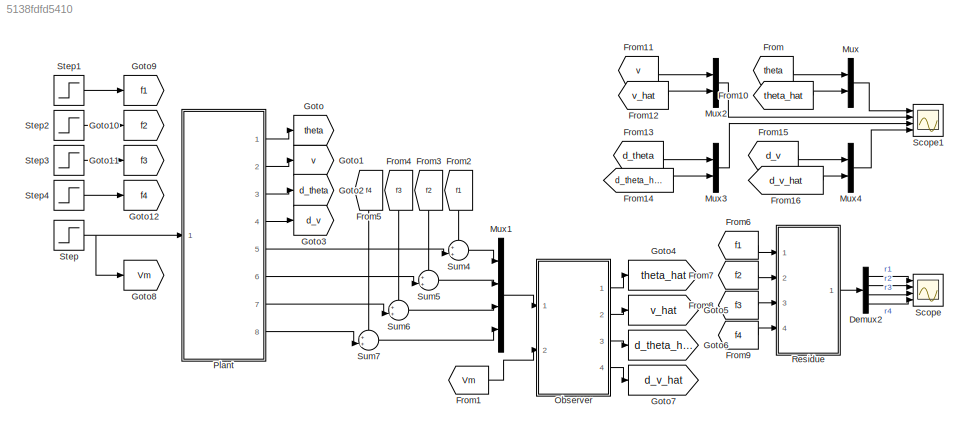
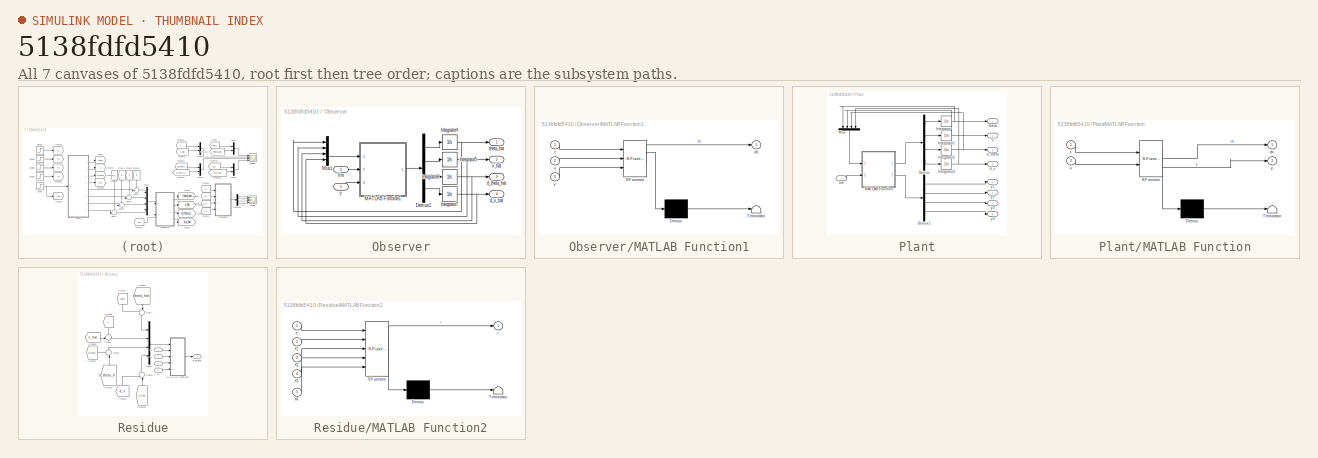
[diagram: thumbnail index - all 7 canvases of the model, root first then tree order]
MODEL slx_5138fdfd5410
KIND model
CONFIG AbsTol = auto
CONFIG EnableMultiTasking = on
CONFIG FixedStep = auto
CONFIG MaxStep = 2e-3
CONFIG MinStep = 1e-3
CONFIG RelTol = 1e-4
CONFIG SampleTimeConstraint = Unconstrained
CONFIG SolverName = ode45
CONFIG StartTime = 0.0
CONFIG StopTime = 5
BLOCK [Demux] Demux2
  Ports = [1, 4]
BLOCK [From] From
  GotoTag = theta
  TagVisibility = global
BLOCK [From] From1
  GotoTag = Vm
  TagVisibility = global
BLOCK [From] From10
  GotoTag = theta_hat
  TagVisibility = global
BLOCK [From] From11
  GotoTag = v
  TagVisibility = global
BLOCK [From] From12
  GotoTag = v_hat
  TagVisibility = global
BLOCK [From] From13
  GotoTag = d_theta
  TagVisibility = global
BLOCK [From] From14
  GotoTag = d_theta_hat
  TagVisibility = global
BLOCK [From] From15
  GotoTag = d_v
  TagVisibility = global
BLOCK [From] From16
  GotoTag = d_v_hat
  TagVisibility = global
BLOCK [From] From2
  GotoTag = f1
  NameLocation = left
  TagVisibility = global
BLOCK [From] From3
  GotoTag = f2
  NameLocation = left
  TagVisibility = global
BLOCK [From] From4
  GotoTag = f3
  NameLocation = left
  TagVisibility = global
BLOCK [From] From5
  GotoTag = f4
  NameLocation = left
  TagVisibility = global
BLOCK [From] From6
  GotoTag = f1
  TagVisibility = global
BLOCK [From] From7
  GotoTag = f2
  TagVisibility = global
BLOCK [From] From8
  GotoTag = f3
  TagVisibility = global
BLOCK [From] From9
  GotoTag = f4
  TagVisibility = global
BLOCK [Goto] Goto
  GotoTag = theta
  TagVisibility = global
BLOCK [Goto] Goto1
  GotoTag = v
  TagVisibility = global
BLOCK [Goto] Goto10
  GotoTag = f2
  TagVisibility = global
BLOCK [Goto] Goto11
  GotoTag = f3
  TagVisibility = global
BLOCK [Goto] Goto12
  GotoTag = f4
  TagVisibility = global
BLOCK [Goto] Goto2
  GotoTag = d_theta
  TagVisibility = global
BLOCK [Goto] Goto3
  GotoTag = d_v
  TagVisibility = global
BLOCK [Goto] Goto4
  GotoTag = theta_hat
  TagVisibility = global
BLOCK [Goto] Goto5
  GotoTag = v_hat
  TagVisibility = global
BLOCK [Goto] Goto6
  GotoTag = d_theta_hat
  TagVisibility = global
BLOCK [Goto] Goto7
  GotoTag = d_v_hat
  TagVisibility = global
BLOCK [Goto] Goto8
  GotoTag = Vm
  NameLocation = top
  TagVisibility = global
BLOCK [Goto] Goto9
  GotoTag = f1
  TagVisibility = global
BLOCK [Mux] Mux
  DisplayOption = bar
  Inputs = 2
  Ports = [2, 1]
BLOCK [Mux] Mux1
  DisplayOption = bar
  Ports = [4, 1]
BLOCK [Mux] Mux2
  DisplayOption = bar
  Inputs = 2
  Ports = [2, 1]
BLOCK [Mux] Mux3
  DisplayOption = bar
  Inputs = 2
  Ports = [2, 1]
BLOCK [Mux] Mux4
  DisplayOption = bar
  Inputs = 2
  Ports = [2, 1]
BLOCK [SubSystem] Observer
  Ports = [2, 4]
  RequestExecContextInheritance = off
BLOCK [Demux] Observer/Demux1
  Ports = [1, 4]
BLOCK [Integrator] Observer/Integrator4
  Ports = [1, 1]
BLOCK [Integrator] Observer/Integrator5
  Ports = [1, 1]
BLOCK [Integrator] Observer/Integrator6
  Ports = [1, 1]
BLOCK [Integrator] Observer/Integrator7
  Ports = [1, 1]
BLOCK [SubSystem] Observer/MATLAB Function1
  ErrorFcn = Stateflow.Translate.translate
  PermitHierarchicalResolution = ExplicitOnly
  Ports = [3, 1]
  RequestExecContextInheritance = off
  SFBlockType = MATLAB Function
  TreatAsAtomicUnit = on
BLOCK [Demux] Observer/MATLAB Function1/ Demux 
  Outputs = 1
  Ports = [1, 1]
BLOCK [S-Function] Observer/MATLAB Function1/ SFunction 
  EnableBusSupport = on
  FunctionName = sf_sfun
  PortCounts = [3 2]
  Ports = [3, 2]
  SFcnIsStateOwnerBlock = off
  SFunctionDeploymentMode = off
  Tag = Stateflow S-Function 1
BLOCK [Terminator] Observer/MATLAB Function1/ Terminator 
BLOCK [Outport] Observer/MATLAB Function1/dz
BLOCK [Inport] Observer/MATLAB Function1/u
  Port = 2
BLOCK [Inport] Observer/MATLAB Function1/y
  Port = 3
BLOCK [Inport] Observer/MATLAB Function1/z
BLOCK [Mux] Observer/Mux1
  DisplayOption = bar
  Ports = [4, 1]
BLOCK [Inport] Observer/Vm
  NameLocation = top
  Port = 2
BLOCK [Outport] Observer/d_theta_hat
  Port = 3
BLOCK [Outport] Observer/d_v_hat
  Port = 4
BLOCK [Outport] Observer/theta_hat
BLOCK [Outport] Observer/v_hat
  Port = 2
BLOCK [Inport] Observer/y
BLOCK [SubSystem] Plant
  Ports = [1, 8]
  RequestExecContextInheritance = off
BLOCK [Demux] Plant/Demux
  Ports = [1, 4]
BLOCK [Demux] Plant/Demux1
  Ports = [1, 4]
BLOCK [Integrator] Plant/Integrator
  Ports = [1, 1]
BLOCK [Integrator] Plant/Integrator1
  Ports = [1, 1]
BLOCK [Integrator] Plant/Integrator2
  Ports = [1, 1]
BLOCK [Integrator] Plant/Integrator3
  Ports = [1, 1]
BLOCK [SubSystem] Plant/MATLAB Function
  ErrorFcn = Stateflow.Translate.translate
  PermitHierarchicalResolution = ExplicitOnly
  Ports = [2, 2]
  RequestExecContextInheritance = off
  SFBlockType = MATLAB Function
  TreatAsAtomicUnit = on
BLOCK [Demux] Plant/MATLAB Function/ Demux 
  Outputs = 1
  Ports = [1, 1]
BLOCK [S-Function] Plant/MATLAB Function/ SFunction 
  EnableBusSupport = on
  FunctionName = sf_sfun
  PortCounts = [2 3]
  Ports = [2, 3]
  SFcnIsStateOwnerBlock = off
  SFunctionDeploymentMode = off
  Tag = Stateflow S-Function 2
BLOCK [Terminator] Plant/MATLAB Function/ Terminator 
BLOCK [Outport] Plant/MATLAB Function/dx
BLOCK [Inport] Plant/MATLAB Function/u
  Port = 2
BLOCK [Inport] Plant/MATLAB Function/x
BLOCK [Outport] Plant/MATLAB Function/y
  Port = 2
BLOCK [Mux] Plant/Mux
  DisplayOption = bar
  NameLocation = left
  Ports = [4, 1]
BLOCK [Inport] Plant/Vm
BLOCK [Outport] Plant/d_theta
  Port = 3
BLOCK [Outport] Plant/d_v
  Port = 4
BLOCK [Outport] Plant/theta
BLOCK [Outport] Plant/v
  Port = 2
BLOCK [Outport] Plant/y1
  Port = 5
BLOCK [Outport] Plant/y2
  Port = 6
BLOCK [Outport] Plant/y3
  Port = 7
BLOCK [Outport] Plant/y4
  Port = 8
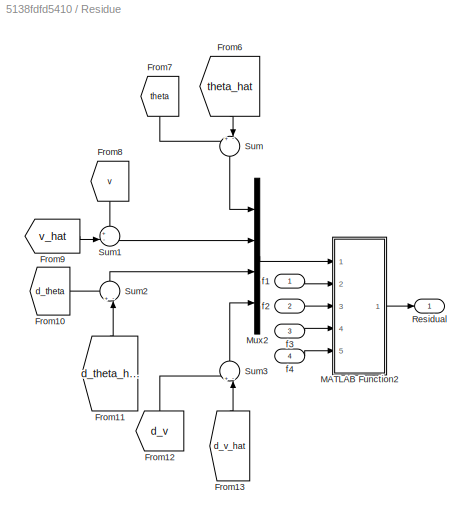
BLOCK [SubSystem] Residue
  Ports = [4, 1]
  RequestExecContextInheritance = off
BLOCK [From] Residue/From10
  GotoTag = d_theta
  TagVisibility = global
BLOCK [From] Residue/From11
  GotoTag = d_theta_hat
  NameLocation = right
  TagVisibility = global
BLOCK [From] Residue/From12
  GotoTag = d_v
  NameLocation = right
  TagVisibility = global
BLOCK [From] Residue/From13
  GotoTag = d_v_hat
  NameLocation = left
  TagVisibility = global
BLOCK [From] Residue/From6
  GotoTag = theta_hat
  NameLocation = left
  TagVisibility = global
BLOCK [From] Residue/From7
  GotoTag = theta
  NameLocation = left
  TagVisibility = global
BLOCK [From] Residue/From8
  GotoTag = v
  NameLocation = left
  TagVisibility = global
BLOCK [From] Residue/From9
  GotoTag = v_hat
  TagVisibility = global
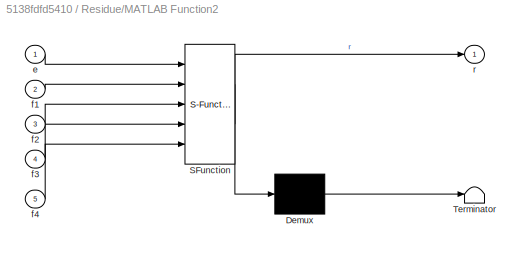
BLOCK [SubSystem] Residue/MATLAB Function2
  ErrorFcn = Stateflow.Translate.translate
  PermitHierarchicalResolution = ExplicitOnly
  Ports = [5, 1]
  RequestExecContextInheritance = off
  SFBlockType = MATLAB Function
  TreatAsAtomicUnit = on
BLOCK [Demux] Residue/MATLAB Function2/ Demux 
  Outputs = 1
  Ports = [1, 1]
BLOCK [S-Function] Residue/MATLAB Function2/ SFunction 
  EnableBusSupport = on
  FunctionName = sf_sfun
  PortCounts = [5 2]
  Ports = [5, 2]
  SFcnIsStateOwnerBlock = off
  SFunctionDeploymentMode = off
  Tag = Stateflow S-Function 3
BLOCK [Terminator] Residue/MATLAB Function2/ Terminator 
BLOCK [Inport] Residue/MATLAB Function2/e
BLOCK [Inport] Residue/MATLAB Function2/f1
  Port = 2
BLOCK [Inport] Residue/MATLAB Function2/f2
  Port = 3
BLOCK [Inport] Residue/MATLAB Function2/f3
  Port = 4
BLOCK [Inport] Residue/MATLAB Function2/f4
  Port = 5
BLOCK [Outport] Residue/MATLAB Function2/r
BLOCK [Mux] Residue/Mux2
  DisplayOption = bar
  Ports = [4, 1]
BLOCK [Outport] Residue/Residual
BLOCK [Sum] Residue/Sum
  Inputs = +-|
  NameLocation = left
  Ports = [2, 1]
BLOCK [Sum] Residue/Sum1
  Inputs = +-|
  Ports = [2, 1]
BLOCK [Sum] Residue/Sum2
  Inputs = +-|
  NameLocation = right
  Ports = [2, 1]
BLOCK [Sum] Residue/Sum3
  Inputs = +-|
  NameLocation = left
  Ports = [2, 1]
BLOCK [Inport] Residue/f1
BLOCK [Inport] Residue/f2
  Port = 2
BLOCK [Inport] Residue/f3
  Port = 3
BLOCK [Inport] Residue/f4
  Port = 4
BLOCK [Scope] Scope
  Floating = off
  NumInputPorts = 4
  Ports = [4]
  ScopeSpecificationString = Simulink.scopes.TimeScopeBlockCfg('CurrentConfiguration', extmgr.ConfigurationSet(extmgr.Configuration('Core','General UI',true),extmgr.Configuration('Core','Source UI',true),extmgr.Configuration('Sources','WiredSimulink',true),extmgr.Configuration('Visuals','Time Domain',true,'SerializedDisplays',{struct('MinYLimReal','-0.08654','MaxYLimReal','0.00962','YLabelReal','','MinYLimMag','0.00000','MaxY...<+3341ch>
BLOCK [Scope] Scope1
  Floating = off
  NumInputPorts = 4
  Ports = [4]
  ScopeSpecificationString = Simulink.scopes.TimeScopeBlockCfg('CurrentConfiguration', extmgr.ConfigurationSet(extmgr.Configuration('Core','General UI',true),extmgr.Configuration('Core','Source UI',true),extmgr.Configuration('Sources','WiredSimulink',true,'DataLoggingVariableName','ScopeData1'),extmgr.Configuration('Visuals','Time Domain',true,'SerializedDisplays',{struct('MinYLimReal','-0.00962','MaxYLimReal','0.08654','YLab...<+3872ch>
BLOCK [Step] Step
  After = 0
  SampleTime = 0
  Time = 0
BLOCK [Step] Step1
  After = 0
  SampleTime = 0
  Time = 0
BLOCK [Step] Step2
  After = 0
  SampleTime = 0
  Time = 0
BLOCK [Step] Step3
  After = 0
  SampleTime = 0
  Time = 0
BLOCK [Step] Step4
  After = 2
  SampleTime = 0
  Time = 2
BLOCK [Sum] Sum4
  Inputs = ++|
  Ports = [2, 1]
BLOCK [Sum] Sum5
  Inputs = ++|
  Ports = [2, 1]
BLOCK [Sum] Sum6
  Inputs = ++|
  Ports = [2, 1]
BLOCK [Sum] Sum7
  Inputs = ++|
  Ports = [2, 1]
LINE Demux2:1 -> Scope:1
LINE Demux2:2 -> Scope:2
LINE Demux2:3 -> Scope:3
LINE Demux2:4 -> Scope:4
LINE From10:1 -> Mux:2
LINE From11:1 -> Mux2:1
LINE From12:1 -> Mux2:2
LINE From13:1 -> Mux3:1
LINE From14:1 -> Mux3:2
LINE From15:1 -> Mux4:1
LINE From16:1 -> Mux4:2
LINE From1:1 -> Observer:2
LINE From2:1 -> Sum4:1
LINE From3:1 -> Sum5:1
LINE From4:1 -> Sum6:1
LINE From5:1 -> Sum7:1
LINE From6:1 -> Residue:1
LINE From7:1 -> Residue:2
LINE From8:1 -> Residue:3
LINE From9:1 -> Residue:4
LINE From:1 -> Mux:1
LINE Mux1:1 -> Observer:1
LINE Mux2:1 -> Scope1:2
LINE Mux3:1 -> Scope1:3
LINE Mux4:1 -> Scope1:4
LINE Mux:1 -> Scope1:1
LINE Observer/Demux1:1 -> Observer/Integrator4:1
LINE Observer/Demux1:2 -> Observer/Integrator5:1
LINE Observer/Demux1:3 -> Observer/Integrator6:1
LINE Observer/Demux1:4 -> Observer/Integrator7:1
NET Observer/Integrator4:1 -> Observer/Mux1:1, Observer/theta_hat:1
NET Observer/Integrator5:1 -> Observer/Mux1:2, Observer/v_hat:1
NET Observer/Integrator6:1 -> Observer/Mux1:3, Observer/d_theta_hat:1
NET Observer/Integrator7:1 -> Observer/Mux1:4, Observer/d_v_hat:1
LINE Observer/MATLAB Function1:1 -> Observer/Demux1:1
LINE Observer/Mux1:1 -> Observer/MATLAB Function1:1
LINE Observer/Vm:1 -> Observer/MATLAB Function1:2
LINE Observer/y:1 -> Observer/MATLAB Function1:3
LINE Observer:1 -> Goto4:1
LINE Observer:2 -> Goto5:1
LINE Observer:3 -> Goto6:1
LINE Observer:4 -> Goto7:1
LINE Plant/Demux1:1 -> Plant/y1:1
LINE Plant/Demux1:2 -> Plant/y2:1
LINE Plant/Demux1:3 -> Plant/y3:1
LINE Plant/Demux1:4 -> Plant/y4:1
LINE Plant/Demux:1 -> Plant/Integrator:1
LINE Plant/Demux:2 -> Plant/Integrator1:1
LINE Plant/Demux:3 -> Plant/Integrator2:1
LINE Plant/Demux:4 -> Plant/Integrator3:1
NET Plant/Integrator1:1 -> Plant/Mux:2, Plant/v:1
NET Plant/Integrator2:1 -> Plant/Mux:3, Plant/d_theta:1
NET Plant/Integrator3:1 -> Plant/Mux:4, Plant/d_v:1
NET Plant/Integrator:1 -> Plant/Mux:1, Plant/theta:1
LINE Plant/MATLAB Function:1 -> Plant/Demux:1
LINE Plant/MATLAB Function:2 -> Plant/Demux1:1
LINE Plant/Mux:1 -> Plant/MATLAB Function:1
LINE Plant/Vm:1 -> Plant/MATLAB Function:2
LINE Plant:1 -> Goto:1
LINE Plant:2 -> Goto1:1
LINE Plant:3 -> Goto2:1
LINE Plant:4 -> Goto3:1
LINE Plant:5 -> Sum4:2
LINE Plant:6 -> Sum5:2
LINE Plant:7 -> Sum6:2
LINE Plant:8 -> Sum7:2
LINE Residue/From10:1 -> Residue/Sum2:1
LINE Residue/From11:1 -> Residue/Sum2:2
LINE Residue/From12:1 -> Residue/Sum3:1
LINE Residue/From13:1 -> Residue/Sum3:2
LINE Residue/From6:1 -> Residue/Sum:2
LINE Residue/From7:1 -> Residue/Sum:1
LINE Residue/From8:1 -> Residue/Sum1:1
LINE Residue/From9:1 -> Residue/Sum1:2
LINE Residue/MATLAB Function2:1 -> Residue/Residual:1
LINE Residue/Mux2:1 -> Residue/MATLAB Function2:1
LINE Residue/Sum1:1 -> Residue/Mux2:2
LINE Residue/Sum2:1 -> Residue/Mux2:3
LINE Residue/Sum3:1 -> Residue/Mux2:4
LINE Residue/Sum:1 -> Residue/Mux2:1
LINE Residue/f1:1 -> Residue/MATLAB Function2:2
LINE Residue/f2:1 -> Residue/MATLAB Function2:3
LINE Residue/f3:1 -> Residue/MATLAB Function2:4
LINE Residue/f4:1 -> Residue/MATLAB Function2:5
LINE Residue:1 -> Demux2:1
LINE Step1:1 -> Goto9:1
LINE Step2:1 -> Goto10:1
LINE Step3:1 -> Goto11:1
LINE Step4:1 -> Goto12:1
NET Step:1 -> Goto8:1, Plant:1
LINE Sum4:1 -> Mux1:1
LINE Sum5:1 -> Mux1:2
LINE Sum6:1 -> Mux1:3
LINE Sum7:1 -> Mux1:4
note: NET lines group one-source signal fan-out (src -> all destinations, sorted); 1:1 wires keep LINE
CHART Observer/MATLAB Function1 states=1 transitions=1
  STATE_LABEL 'eML_blk_kernel()'
  STATE_LABEL 'SCRIPT:\nfunction dz = observer(z,u,y)\ndz = zeros(4,1);\nA = [0 0 1 0;0 0 0 1;0 483.1312 -28.2625 0;0 -837.2130 28.2625 0];\nB = [0;0;49.7076;-49.7076];\nC = eye(4);\nL_p = [5 -1 1 0;1 5 0 1;0 483.1312 -20.2625 -0.5;0 -837.213 28.7625 8];\ntemp = (A-L_p*C)*z;\ntemp2 = B*u;\ntemp3 = L_p*y;\ndz = temp(:,1)+temp2(:,1)+temp3(:,1);\nend'
CHART Plant/MATLAB Function states=1 transitions=1
  STATE_LABEL 'eML_blk_kernel()'
  STATE_LABEL 'SCRIPT:\nfunction [dx, y] = plant(x,u)\ndx = zeros(4,1);\nA = [0 0 1 0;0 0 0 1;0 483.1312 -28.2625 0;0 -837.2130 28.2625 0];\nB = [0;0;49.7076;-49.7076];\nC = eye(4);\ntemp = A*x;\ntemp2 = B*u;\ndx = temp(:,1) + temp2(:,1);\ny = C*x;\n%y = size(dx,1);\nend'
CHART Residue/MATLAB Function2 states=1 transitions=1
  STATE_LABEL 'eML_blk_kernel()'
  STATE_LABEL 'SCRIPT:\nfunction r  = residue(e,f1,f2,f3,f4)\nL1 = eye(4); L2 = -L1; Df = eye(4);\nf = [f1;f2;f3;f4];\ntemp2 = L1*e;\ntemp3 = L2*Df*f;\nr = temp2(:,1) + temp3(:,1);\nend'
CHART  states=0 transitions=0
CHART  states=0 transitions=0
CHART  states=0 transitions=0
